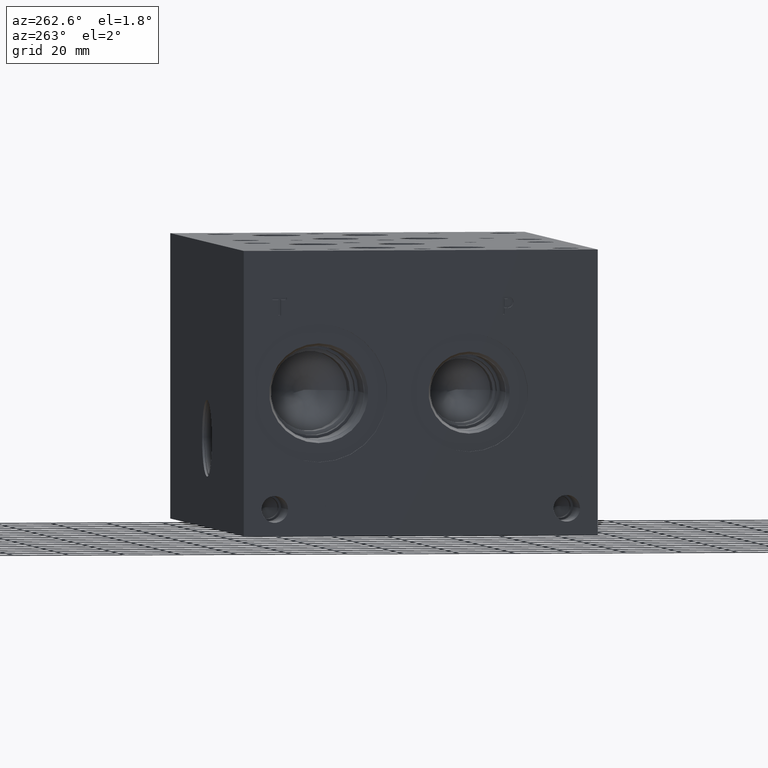
[diagram: clean part render]
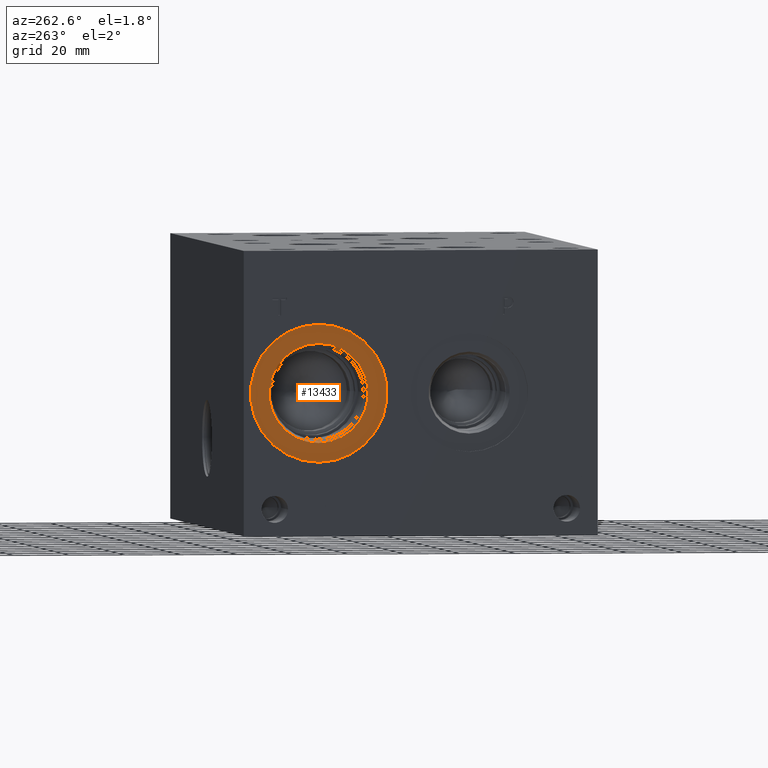
[diagram: same view with one face highlighted and labeled with its STEP entity id]
A machine part, auxiliary view. The second image highlights one B-rep face of the part: STEP entity #13433.
In plain terms, the highlighted planar face has unit normal (1, 0, 0).
Its self-contained STEP definition (entity closure, byte-faithful):
#329=CIRCLE('',#14140,24.5618);
#330=CIRCLE('',#14141,24.5618);
#331=CIRCLE('',#14143,17.7546);
#332=CIRCLE('',#14144,17.7546);
#654=FACE_BOUND('',#2418,.T.);
#1053=PLANE('',#14142);
#1637=FACE_OUTER_BOUND('',#2417,.T.);
#2417=EDGE_LOOP('',(#11476,#11477));
#2418=EDGE_LOOP('',(#11478,#11479));
#6337=VERTEX_POINT('',#22650);
#6338=VERTEX_POINT('',#22652);
#6339=VERTEX_POINT('',#22656);
#6340=VERTEX_POINT('',#22657);
#8128=EDGE_CURVE('',#6337,#6338,#329,.T.);
#8129=EDGE_CURVE('',#6338,#6337,#330,.T.);
#8130=EDGE_CURVE('',#6339,#6340,#331,.T.);
#8131=EDGE_CURVE('',#6340,#6339,#332,.T.);
#11476=ORIENTED_EDGE('',*,*,#8129,.F.);
#11477=ORIENTED_EDGE('',*,*,#8128,.F.);
#11478=ORIENTED_EDGE('',*,*,#8130,.T.);
#11479=ORIENTED_EDGE('',*,*,#8131,.T.);
#13433=ADVANCED_FACE('',(#1637,#654),#1053,.F.);
#14140=AXIS2_PLACEMENT_3D('',#22653,#16700,#16701);
#14141=AXIS2_PLACEMENT_3D('',#22654,#16702,#16703);
#14142=AXIS2_PLACEMENT_3D('',#22655,#16704,#16705);
#14143=AXIS2_PLACEMENT_3D('',#22658,#16706,#16707);
#14144=AXIS2_PLACEMENT_3D('',#22659,#16708,#16709);
#16700=DIRECTION('center_axis',(1.,0.,0.));
#16701=DIRECTION('ref_axis',(0.,0.,-1.));
#16702=DIRECTION('center_axis',(1.,0.,0.));
#16703=DIRECTION('ref_axis',(0.,0.,-1.));
#16704=DIRECTION('center_axis',(1.,0.,0.));
#16705=DIRECTION('ref_axis',(0.,0.,-1.));
#16706=DIRECTION('center_axis',(1.,0.,0.));
#16707=DIRECTION('ref_axis',(0.,0.,-1.));
#16708=DIRECTION('center_axis',(1.,0.,0.));
#16709=DIRECTION('ref_axis',(0.,0.,-1.));
#22650=CARTESIAN_POINT('',(0.7874,100.0252,26.2382));
#22652=CARTESIAN_POINT('',(0.7874,100.0252,75.3618));
#22653=CARTESIAN_POINT('Origin',(0.7874,100.0252,50.8));
#22654=CARTESIAN_POINT('Origin',(0.7874,100.0252,50.8));
#22655=CARTESIAN_POINT('Origin',(0.7874,100.0252,68.5546));
#22656=CARTESIAN_POINT('',(0.7874,100.0252,68.5546));
#22657=CARTESIAN_POINT('',(0.787400000000001,100.0252,33.0454));
#22658=CARTESIAN_POINT('Origin',(0.7874,100.0252,50.8));
#22659=CARTESIAN_POINT('Origin',(0.7874,100.0252,50.8));